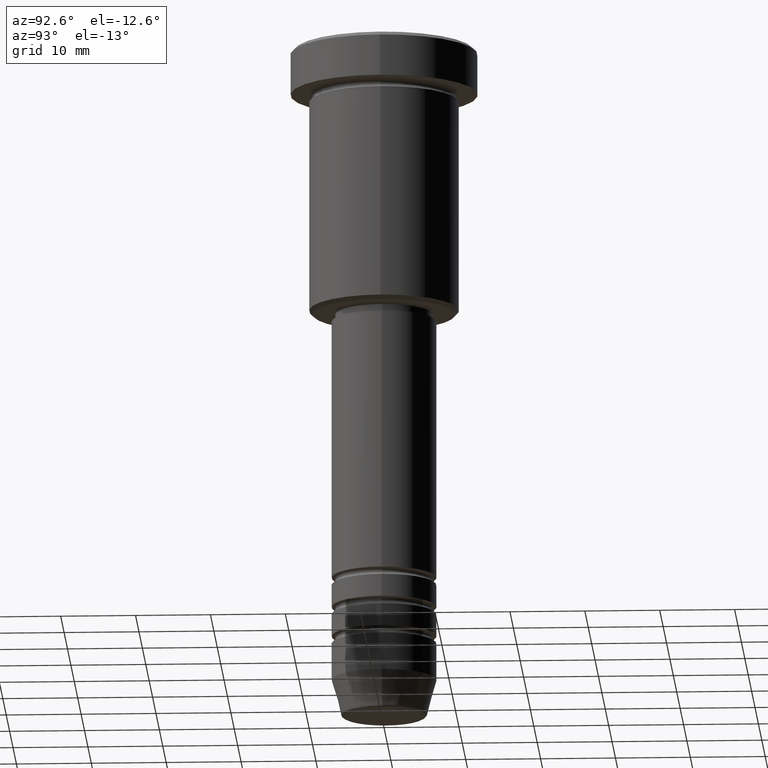
[diagram: clean part render]
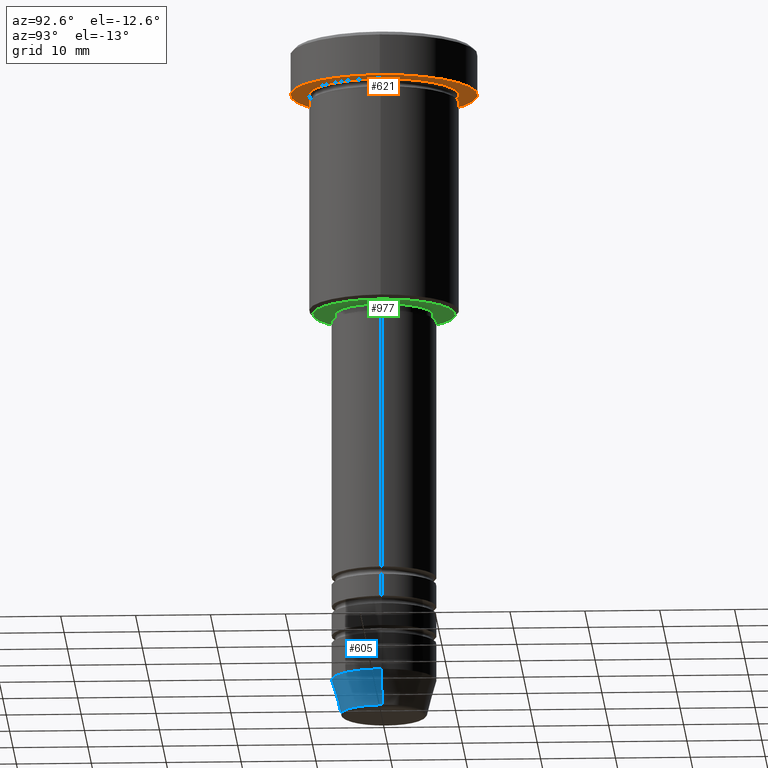
[diagram: same view with three faces highlighted in distinct colors, each labeled with its STEP entity id]
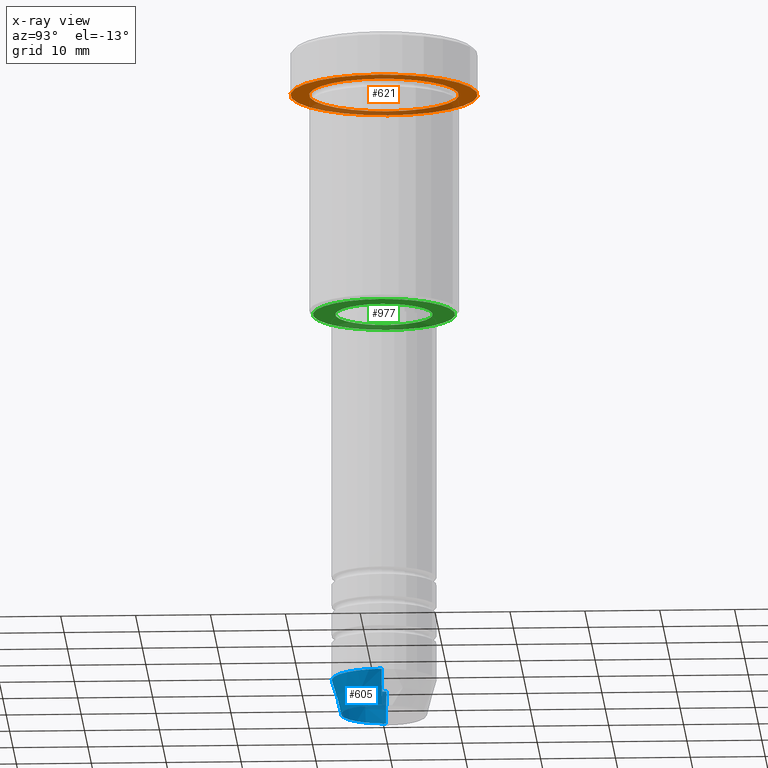
[diagram: x-ray of the same camera — body ghosted, the three highlighted faces saturated]
A machine part, auxiliary view with three faces highlighted in distinct colors.
The next image is the same camera in x-ray (body ghosted, the three faces saturated) — at least one of them is partly hidden behind the body in this view.
Their STEP definitions:

[orange] entity #621 — the highlighted planar face has unit normal (0, 0, -1).
#2 = EDGE_CURVE ( 'NONE', #775, #60, #608, .T. ) ;
#19 = EDGE_CURVE ( 'NONE', #60, #775, #496, .T. ) ;
#57 = DIRECTION ( 'NONE',  ( -1.000000000000000000, 0.000000000000000000, 0.000000000000000000 ) ) ;
#60 = VERTEX_POINT ( 'NONE', #145 ) ;
#92 = AXIS2_PLACEMENT_3D ( 'NONE', #662, #486, #846 ) ;
#98 = CARTESIAN_POINT ( 'NONE',  ( 0.000000000000000000, 12.50000000000000000, -5.999999999999996447 ) ) ;
#111 = CIRCLE ( 'NONE', #92, 12.50000000000000000 ) ;
#119 = DIRECTION ( 'NONE',  ( -0.000000000000000000, -0.000000000000000000, 1.000000000000000000 ) ) ;
#145 = CARTESIAN_POINT ( 'NONE',  ( 10.00000000000000000, 1.224646799147353256E-15, -5.999999999999996447 ) ) ;
#211 = ORIENTED_EDGE ( 'NONE', *, *, #2, .T. ) ;
#219 = EDGE_LOOP ( 'NONE', ( #1077, #720 ) ) ;
#228 = CARTESIAN_POINT ( 'NONE',  ( 0.000000000000000000, 0.000000000000000000, -5.999999999999996447 ) ) ;
#231 = EDGE_CURVE ( 'NONE', #487, #586, #990, .T. ) ;
#283 = FACE_OUTER_BOUND ( 'NONE', #219, .T. ) ;
#289 = AXIS2_PLACEMENT_3D ( 'NONE', #822, #364, #548 ) ;
#301 = DIRECTION ( 'NONE',  ( 0.000000000000000000, 0.000000000000000000, -1.000000000000000000 ) ) ;
#323 = CARTESIAN_POINT ( 'NONE',  ( 0.000000000000000000, 0.000000000000000000, -5.999999999999996447 ) ) ;
#362 = EDGE_CURVE ( 'NONE', #586, #487, #111, .T. ) ;
#364 = DIRECTION ( 'NONE',  ( -0.000000000000000000, -0.000000000000000000, 1.000000000000000000 ) ) ;
#387 = ORIENTED_EDGE ( 'NONE', *, *, #19, .T. ) ;
#440 = AXIS2_PLACEMENT_3D ( 'NONE', #228, #969, #57 ) ;
#486 = DIRECTION ( 'NONE',  ( -0.000000000000000000, -0.000000000000000000, 1.000000000000000000 ) ) ;
#487 = VERTEX_POINT ( 'NONE', #875 ) ;
#496 = CIRCLE ( 'NONE', #972, 10.00000000000000000 ) ;
#528 = EDGE_LOOP ( 'NONE', ( #211, #387 ) ) ;
#548 = DIRECTION ( 'NONE',  ( 1.000000000000000000, 0.000000000000000000, 0.000000000000000000 ) ) ;
#553 = FACE_BOUND ( 'NONE', #528, .T. ) ;
#586 = VERTEX_POINT ( 'NONE', #627 ) ;
#608 = CIRCLE ( 'NONE', #440, 10.00000000000000000 ) ;
#621 = ADVANCED_FACE ( 'NONE', ( #553, #283 ), #918, .T. ) ;
#627 = CARTESIAN_POINT ( 'NONE',  ( -12.50000000000000000, 1.530808498934191521E-15, -5.999999999999996447 ) ) ;
#662 = CARTESIAN_POINT ( 'NONE',  ( 0.000000000000000000, 0.000000000000000000, -5.999999999999996447 ) ) ;
#671 = AXIS2_PLACEMENT_3D ( 'NONE', #98, #301, #923 ) ;
#697 = DIRECTION ( 'NONE',  ( -1.000000000000000000, 0.000000000000000000, 0.000000000000000000 ) ) ;
#720 = ORIENTED_EDGE ( 'NONE', *, *, #362, .F. ) ;
#775 = VERTEX_POINT ( 'NONE', #868 ) ;
#822 = CARTESIAN_POINT ( 'NONE',  ( 0.000000000000000000, 0.000000000000000000, -5.999999999999996447 ) ) ;
#846 = DIRECTION ( 'NONE',  ( 1.000000000000000000, 0.000000000000000000, 0.000000000000000000 ) ) ;
#868 = CARTESIAN_POINT ( 'NONE',  ( -10.00000000000000000, 0.000000000000000000, -5.999999999999996447 ) ) ;
#875 = CARTESIAN_POINT ( 'NONE',  ( 12.50000000000000000, 0.000000000000000000, -5.999999999999996447 ) ) ;
#918 = PLANE ( 'NONE',  #671 ) ;
#923 = DIRECTION ( 'NONE',  ( -1.000000000000000000, 0.000000000000000000, -0.000000000000000000 ) ) ;
#969 = DIRECTION ( 'NONE',  ( -0.000000000000000000, -0.000000000000000000, 1.000000000000000000 ) ) ;
#972 = AXIS2_PLACEMENT_3D ( 'NONE', #323, #119, #697 ) ;
#990 = CIRCLE ( 'NONE', #289, 12.50000000000000000 ) ;
#1077 = ORIENTED_EDGE ( 'NONE', *, *, #231, .F. ) ;

[blue] entity #605 — the highlighted conical surface has half-angle 15 deg.
#62 = EDGE_CURVE ( 'NONE', #689, #390, #606, .T. ) ;
#64 = AXIS2_PLACEMENT_3D ( 'NONE', #1073, #1097, #95 ) ;
#86 = AXIS2_PLACEMENT_3D ( 'NONE', #227, #1058, #522 ) ;
#95 = DIRECTION ( 'NONE',  ( 1.000000000000000000, 0.000000000000000000, 0.000000000000000000 ) ) ;
#105 = VERTEX_POINT ( 'NONE', #1039 ) ;
#115 = ORIENTED_EDGE ( 'NONE', *, *, #1060, .F. ) ;
#179 = DIRECTION ( 'NONE',  ( 1.000000000000000000, 0.000000000000000000, 0.000000000000000000 ) ) ;
#227 = CARTESIAN_POINT ( 'NONE',  ( 0.000000000000000000, 0.000000000000000000, -86.00000000000000000 ) ) ;
#258 = EDGE_LOOP ( 'NONE', ( #115, #910, #757, #1136 ) ) ;
#263 = CIRCLE ( 'NONE', #64, 5.759553456999433330 ) ;
#363 = DIRECTION ( 'NONE',  ( -0.000000000000000000, -0.000000000000000000, 1.000000000000000000 ) ) ;
#390 = VERTEX_POINT ( 'NONE', #859 ) ;
#522 = DIRECTION ( 'NONE',  ( 1.000000000000000000, 0.000000000000000000, 0.000000000000000000 ) ) ;
#523 = CARTESIAN_POINT ( 'NONE',  ( -7.000000000000000000, 8.572527594031473190E-16, -86.00000000000000000 ) ) ;
#556 = VECTOR ( 'NONE', #794, 1000.000000000000000 ) ;
#557 = VECTOR ( 'NONE', #861, 1000.000000000000000 ) ;
#605 = ADVANCED_FACE ( 'NONE', ( #1086 ), #634, .T. ) ;
#606 = LINE ( 'NONE', #684, #557 ) ;
#634 = CONICAL_SURFACE ( 'NONE', #934, 7.000000000000000000, 0.2617993877991500740 ) ;
#664 = VERTEX_POINT ( 'NONE', #1112 ) ;
#684 = CARTESIAN_POINT ( 'NONE',  ( 7.000000000000000000, 0.000000000000000000, -86.00000000000000000 ) ) ;
#689 = VERTEX_POINT ( 'NONE', #773 ) ;
#707 = CIRCLE ( 'NONE', #86, 7.000000000000000000 ) ;
#757 = ORIENTED_EDGE ( 'NONE', *, *, #62, .T. ) ;
#773 = CARTESIAN_POINT ( 'NONE',  ( 5.759553456999433330, 0.000000000000000000, -90.62940952255125637 ) ) ;
#794 = DIRECTION ( 'NONE',  ( -0.2588190451025213501, 3.169619151431772337E-17, 0.9659258262890680902 ) ) ;
#805 = CARTESIAN_POINT ( 'NONE',  ( 0.000000000000000000, 0.000000000000000000, -86.00000000000000000 ) ) ;
#826 = EDGE_CURVE ( 'NONE', #105, #689, #263, .T. ) ;
#859 = CARTESIAN_POINT ( 'NONE',  ( 7.000000000000000000, 0.000000000000000000, -86.00000000000000000 ) ) ;
#861 = DIRECTION ( 'NONE',  ( 0.2588190451025213501, 0.000000000000000000, 0.9659258262890680902 ) ) ;
#895 = LINE ( 'NONE', #523, #556 ) ;
#910 = ORIENTED_EDGE ( 'NONE', *, *, #826, .T. ) ;
#934 = AXIS2_PLACEMENT_3D ( 'NONE', #805, #363, #179 ) ;
#1039 = CARTESIAN_POINT ( 'NONE',  ( -5.759553456999433330, 7.812973149831950787E-16, -90.62940952255125637 ) ) ;
#1058 = DIRECTION ( 'NONE',  ( -0.000000000000000000, -0.000000000000000000, 1.000000000000000000 ) ) ;
#1060 = EDGE_CURVE ( 'NONE', #105, #664, #895, .T. ) ;
#1073 = CARTESIAN_POINT ( 'NONE',  ( 0.000000000000000000, 0.000000000000000000, -90.62940952255125637 ) ) ;
#1086 = FACE_OUTER_BOUND ( 'NONE', #258, .T. ) ;
#1097 = DIRECTION ( 'NONE',  ( -0.000000000000000000, -0.000000000000000000, 1.000000000000000000 ) ) ;
#1112 = CARTESIAN_POINT ( 'NONE',  ( -7.000000000000000000, 8.572527594031473190E-16, -86.00000000000000000 ) ) ;
#1134 = EDGE_CURVE ( 'NONE', #664, #390, #707, .T. ) ;
#1136 = ORIENTED_EDGE ( 'NONE', *, *, #1134, .F. ) ;

[green] entity #977 — the highlighted planar face has unit normal (0, 0, -1).
#40 = EDGE_CURVE ( 'NONE', #1018, #1014, #611, .T. ) ;
#50 = CARTESIAN_POINT ( 'NONE',  ( -6.500000000000000000, 7.960204194457795477E-16, -35.99999999999999289 ) ) ;
#121 = CARTESIAN_POINT ( 'NONE',  ( 0.000000000000000000, 0.000000000000000000, -35.99999999999999289 ) ) ;
#126 = EDGE_LOOP ( 'NONE', ( #749, #448 ) ) ;
#201 = CARTESIAN_POINT ( 'NONE',  ( 0.000000000000000000, 10.00000000000000000, -35.99999999999999289 ) ) ;
#294 = DIRECTION ( 'NONE',  ( 0.000000000000000000, 0.000000000000000000, -1.000000000000000000 ) ) ;
#312 = ORIENTED_EDGE ( 'NONE', *, *, #40, .T. ) ;
#330 = AXIS2_PLACEMENT_3D ( 'NONE', #1035, #338, #1055 ) ;
#331 = AXIS2_PLACEMENT_3D ( 'NONE', #813, #563, #985 ) ;
#338 = DIRECTION ( 'NONE',  ( -0.000000000000000000, -0.000000000000000000, 1.000000000000000000 ) ) ;
#417 = AXIS2_PLACEMENT_3D ( 'NONE', #121, #677, #579 ) ;
#448 = ORIENTED_EDGE ( 'NONE', *, *, #790, .T. ) ;
#479 = CIRCLE ( 'NONE', #331, 9.500000000000008882 ) ;
#482 = FACE_OUTER_BOUND ( 'NONE', #126, .T. ) ;
#551 = EDGE_LOOP ( 'NONE', ( #312, #873 ) ) ;
#558 = FACE_BOUND ( 'NONE', #551, .T. ) ;
#562 = EDGE_CURVE ( 'NONE', #698, #953, #479, .T. ) ;
#563 = DIRECTION ( 'NONE',  ( 0.000000000000000000, 0.000000000000000000, -1.000000000000000000 ) ) ;
#569 = CARTESIAN_POINT ( 'NONE',  ( -9.500000000000008882, 1.194030629168669864E-15, -35.99999999999999289 ) ) ;
#579 = DIRECTION ( 'NONE',  ( 1.000000000000000000, 0.000000000000000000, 0.000000000000000000 ) ) ;
#591 = AXIS2_PLACEMENT_3D ( 'NONE', #883, #1175, #1078 ) ;
#611 = CIRCLE ( 'NONE', #330, 6.500000000000000000 ) ;
#677 = DIRECTION ( 'NONE',  ( -0.000000000000000000, -0.000000000000000000, 1.000000000000000000 ) ) ;
#698 = VERTEX_POINT ( 'NONE', #1116 ) ;
#712 = EDGE_CURVE ( 'NONE', #1014, #1018, #1143, .T. ) ;
#749 = ORIENTED_EDGE ( 'NONE', *, *, #562, .T. ) ;
#762 = AXIS2_PLACEMENT_3D ( 'NONE', #201, #294, #926 ) ;
#790 = EDGE_CURVE ( 'NONE', #953, #698, #1160, .T. ) ;
#813 = CARTESIAN_POINT ( 'NONE',  ( 0.000000000000000000, 0.000000000000000000, -35.99999999999999289 ) ) ;
#873 = ORIENTED_EDGE ( 'NONE', *, *, #712, .T. ) ;
#883 = CARTESIAN_POINT ( 'NONE',  ( 0.000000000000000000, 0.000000000000000000, -35.99999999999999289 ) ) ;
#926 = DIRECTION ( 'NONE',  ( -1.000000000000000000, 0.000000000000000000, -0.000000000000000000 ) ) ;
#953 = VERTEX_POINT ( 'NONE', #569 ) ;
#977 = ADVANCED_FACE ( 'NONE', ( #482, #558 ), #1108, .T. ) ;
#985 = DIRECTION ( 'NONE',  ( -1.000000000000000000, 0.000000000000000000, 0.000000000000000000 ) ) ;
#1014 = VERTEX_POINT ( 'NONE', #50 ) ;
#1018 = VERTEX_POINT ( 'NONE', #1149 ) ;
#1035 = CARTESIAN_POINT ( 'NONE',  ( 0.000000000000000000, 0.000000000000000000, -35.99999999999999289 ) ) ;
#1055 = DIRECTION ( 'NONE',  ( 1.000000000000000000, 0.000000000000000000, 0.000000000000000000 ) ) ;
#1078 = DIRECTION ( 'NONE',  ( -1.000000000000000000, 0.000000000000000000, 0.000000000000000000 ) ) ;
#1108 = PLANE ( 'NONE',  #762 ) ;
#1116 = CARTESIAN_POINT ( 'NONE',  ( 9.500000000000008882, 0.000000000000000000, -35.99999999999999289 ) ) ;
#1143 = CIRCLE ( 'NONE', #417, 6.500000000000000000 ) ;
#1149 = CARTESIAN_POINT ( 'NONE',  ( 6.500000000000000000, 0.000000000000000000, -35.99999999999999289 ) ) ;
#1160 = CIRCLE ( 'NONE', #591, 9.500000000000008882 ) ;
#1175 = DIRECTION ( 'NONE',  ( 0.000000000000000000, 0.000000000000000000, -1.000000000000000000 ) ) ;